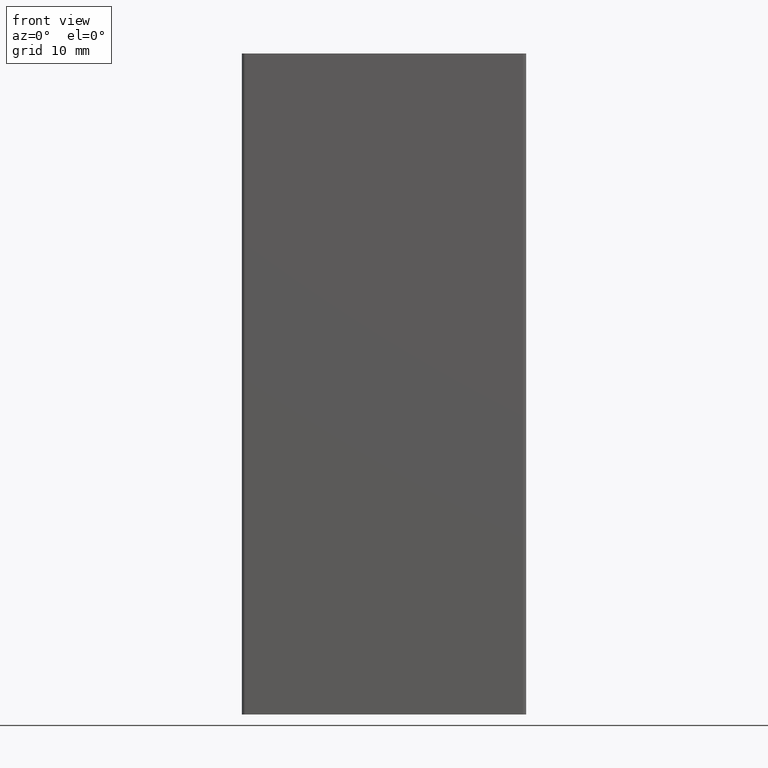
[diagram: clean part render]
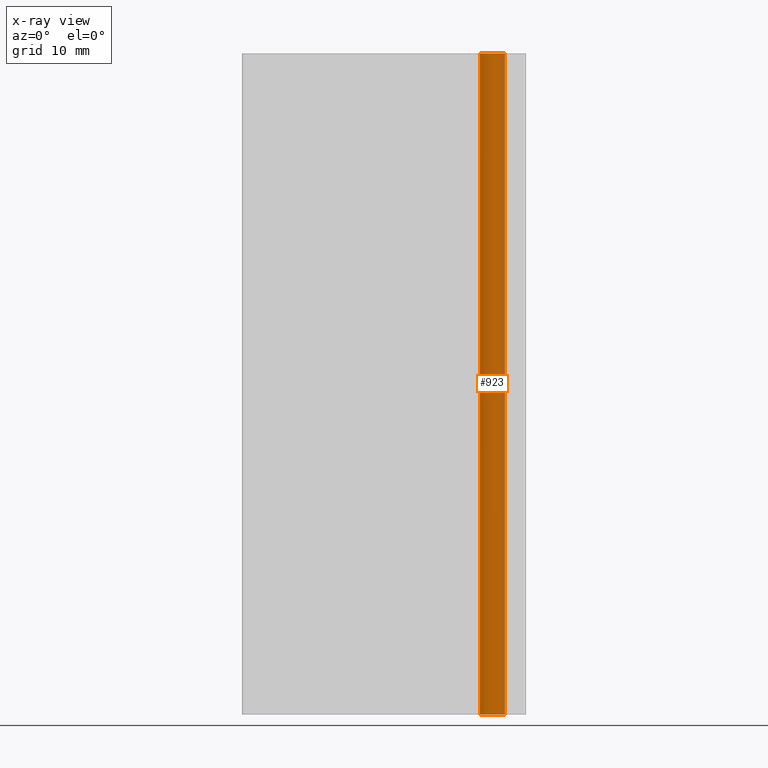
[diagram: x-ray — body ghosted, one internal face saturated and labeled with its STEP entity id]
A machine part, front view, then the same camera in x-ray: the body is ghosted and one INTERNAL B-rep face — a face not visible from any outside direction — is saturated and labeled: STEP entity #923.
In plain terms, the highlighted cylindrical surface (edge-blend (fillet) strip) has radius 3 mm, axis along (0, 0, -1).
Its self-contained STEP definition (entity closure, byte-faithful):
#87=FACE_OUTER_BOUND('',#136,.T.);
#136=EDGE_LOOP('',(#808,#809,#810,#811));
#221=LINE('',#1656,#302);
#222=LINE('',#1658,#303);
#302=VECTOR('',#1357,10.);
#303=VECTOR('',#1360,10.);
#325=CIRCLE('',#1019,3.);
#355=CIRCLE('',#1074,3.);
#390=VERTEX_POINT('',#1462);
#391=VERTEX_POINT('',#1464);
#439=VERTEX_POINT('',#1611);
#440=VERTEX_POINT('',#1613);
#482=EDGE_CURVE('',#390,#391,#325,.T.);
#557=EDGE_CURVE('',#439,#440,#355,.T.);
#579=EDGE_CURVE('',#391,#439,#221,.T.);
#580=EDGE_CURVE('',#440,#390,#222,.T.);
#808=ORIENTED_EDGE('',*,*,#579,.F.);
#809=ORIENTED_EDGE('',*,*,#482,.F.);
#810=ORIENTED_EDGE('',*,*,#580,.F.);
#811=ORIENTED_EDGE('',*,*,#557,.F.);
#881=CYLINDRICAL_SURFACE('',#1090,3.);
#923=ADVANCED_FACE('',(#87),#881,.F.);
#1019=AXIS2_PLACEMENT_3D('',#1465,#1158,#1159);
#1074=AXIS2_PLACEMENT_3D('',#1614,#1313,#1314);
#1090=AXIS2_PLACEMENT_3D('',#1657,#1358,#1359);
#1158=DIRECTION('center_axis',(0.,0.,-1.));
#1159=DIRECTION('ref_axis',(1.,0.,0.));
#1313=DIRECTION('center_axis',(0.,0.,1.));
#1314=DIRECTION('ref_axis',(1.,0.,0.));
#1357=DIRECTION('',(0.,0.,-1.));
#1358=DIRECTION('center_axis',(0.,0.,-1.));
#1359=DIRECTION('ref_axis',(1.,0.,0.));
#1360=DIRECTION('',(0.,0.,1.));
#1462=CARTESIAN_POINT('',(18.2810744326609,2.87500000000001,-290.));
#1464=CARTESIAN_POINT('',(14.515625,1.16609706246404,-290.));
#1465=CARTESIAN_POINT('Origin',(15.5,4.00000000000001,-290.));
#1611=CARTESIAN_POINT('',(14.515625,1.16609706246404,-390.));
#1613=CARTESIAN_POINT('',(18.2810744326609,2.87500000000001,-390.));
#1614=CARTESIAN_POINT('Origin',(15.5,4.00000000000001,-390.));
#1656=CARTESIAN_POINT('',(14.515625,1.16609706246404,390.));
#1657=CARTESIAN_POINT('Origin',(15.5,4.00000000000001,390.));
#1658=CARTESIAN_POINT('',(18.2810744326609,2.87500000000001,390.));